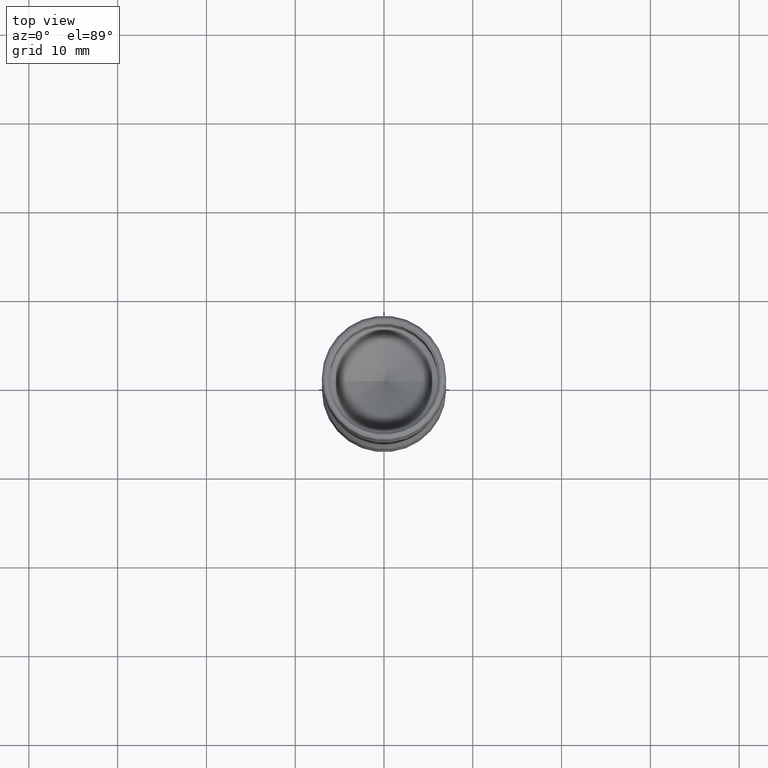
[diagram: clean part render]
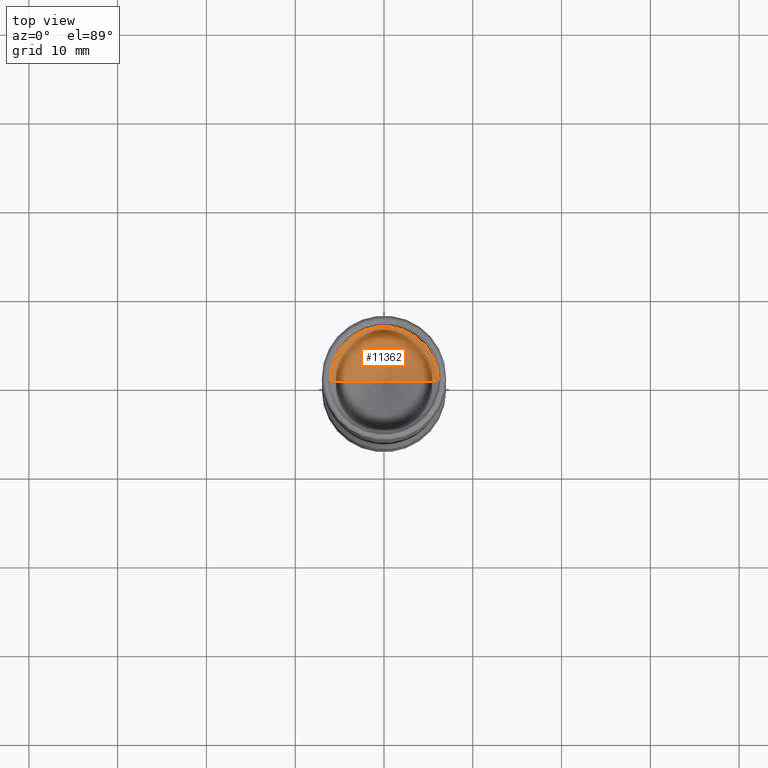
[diagram: same view with one face highlighted and labeled with its STEP entity id]
A machine part, top view. The second image highlights one B-rep face of the part: STEP entity #11362.
In plain terms, the highlighted conical surface has half-angle 59 deg.
Its self-contained STEP definition (entity closure, byte-faithful):
#41 = DIRECTION ( 'NONE',  ( 1.000000000000000000, 0.000000000000000000, 0.000000000000000000 ) ) ;
#420 = EDGE_CURVE ( 'NONE', #4790, #6343, #1753, .T. ) ;
#1093 = CARTESIAN_POINT ( 'NONE',  ( 0.000000000000000000, -3.469446951953614189E-15, 20.49358868961792268 ) ) ;
#1257 = CARTESIAN_POINT ( 'NONE',  ( 6.099999999999999645, -3.469446951953614189E-15, 20.49358868961792268 ) ) ;
#1263 = EDGE_LOOP ( 'NONE', ( #7390, #7316, #1671 ) ) ;
#1380 = AXIS2_PLACEMENT_3D ( 'NONE', #7006, #9687, #41 ) ;
#1501 = CONICAL_SURFACE ( 'NONE', #1380, 6.099999999999999645, 1.029744258676656532 ) ;
#1590 = VECTOR ( 'NONE', #3834, 1000.000000000000227 ) ;
#1671 = ORIENTED_EDGE ( 'NONE', *, *, #420, .F. ) ;
#1753 = CIRCLE ( 'NONE', #3950, 6.099999999999999645 ) ;
#2047 = FACE_OUTER_BOUND ( 'NONE', #1263, .T. ) ;
#2376 = CARTESIAN_POINT ( 'NONE',  ( -6.099999999999999645, -3.469446951953614189E-15, 20.49358868961792268 ) ) ;
#2516 = EDGE_CURVE ( 'NONE', #9147, #6343, #6795, .T. ) ;
#3834 = DIRECTION ( 'NONE',  ( 0.8571673007021134438, 0.000000000000000000, 0.5150380749100523792 ) ) ;
#3900 = VECTOR ( 'NONE', #10351, 1000.000000000000227 ) ;
#3950 = AXIS2_PLACEMENT_3D ( 'NONE', #1093, #10778, #8955 ) ;
#4790 = VERTEX_POINT ( 'NONE', #2376 ) ;
#5204 = CARTESIAN_POINT ( 'NONE',  ( 0.000000000000000000, -3.469446951953614189E-15, 16.82833891354982114 ) ) ;
#6343 = VERTEX_POINT ( 'NONE', #10682 ) ;
#6393 = EDGE_CURVE ( 'NONE', #9147, #4790, #8826, .T. ) ;
#6795 = LINE ( 'NONE', #1257, #1590 ) ;
#6891 = CARTESIAN_POINT ( 'NONE',  ( -6.099999999999999645, -2.722412404473728760E-15, 20.49358868961792268 ) ) ;
#7006 = CARTESIAN_POINT ( 'NONE',  ( 0.000000000000000000, -3.469446951953614189E-15, 20.49358868961792268 ) ) ;
#7316 = ORIENTED_EDGE ( 'NONE', *, *, #2516, .T. ) ;
#7390 = ORIENTED_EDGE ( 'NONE', *, *, #6393, .F. ) ;
#8826 = LINE ( 'NONE', #6891, #3900 ) ;
#8955 = DIRECTION ( 'NONE',  ( -1.000000000000000000, 0.000000000000000000, 0.000000000000000000 ) ) ;
#9147 = VERTEX_POINT ( 'NONE', #5204 ) ;
#9687 = DIRECTION ( 'NONE',  ( 0.000000000000000000, 0.000000000000000000, 1.000000000000000000 ) ) ;
#10351 = DIRECTION ( 'NONE',  ( -0.8571673007021134438, 1.049727191138619928E-16, 0.5150380749100523792 ) ) ;
#10682 = CARTESIAN_POINT ( 'NONE',  ( 6.099999999999999645, -2.722412404473728760E-15, 20.49358868961792268 ) ) ;
#10778 = DIRECTION ( 'NONE',  ( -0.000000000000000000, -0.000000000000000000, -1.000000000000000000 ) ) ;
#11362 = ADVANCED_FACE ( 'NONE', ( #2047 ), #1501, .F. ) ;